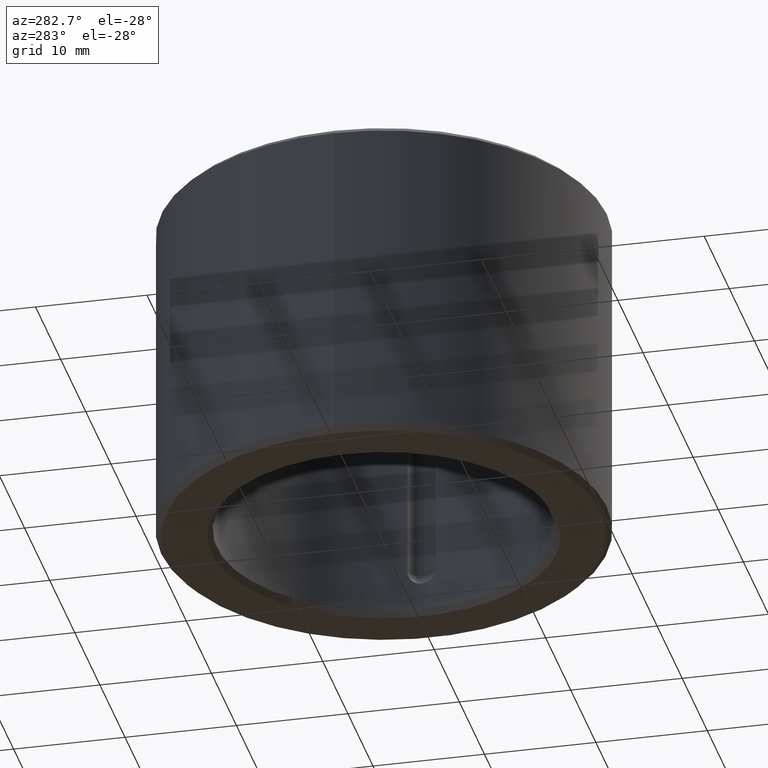
[diagram: clean part render]
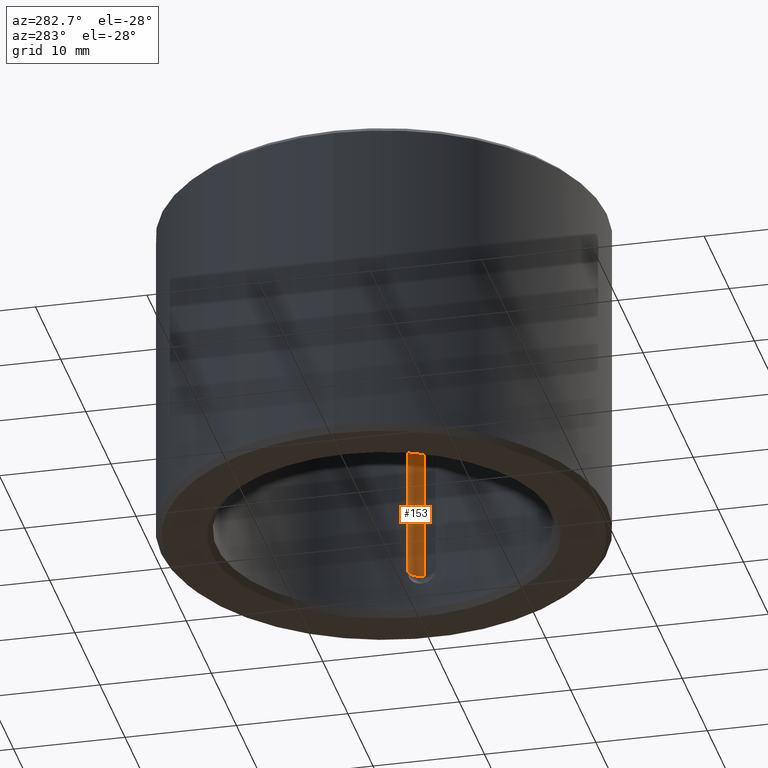
[diagram: same view with one face highlighted and labeled with its STEP entity id]
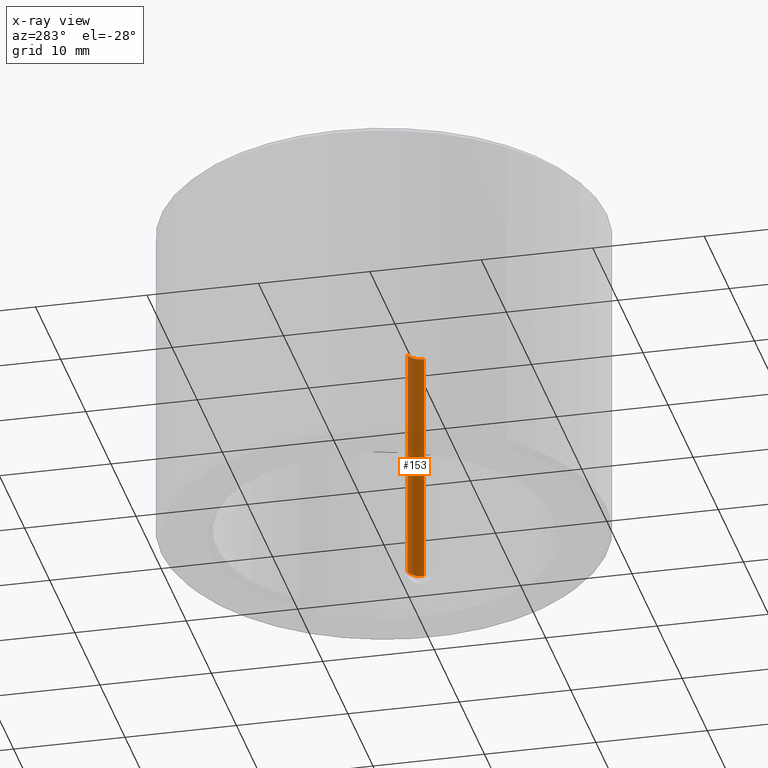
[diagram: x-ray of the same camera — body ghosted, the highlighted face saturated]
A machine part, auxiliary view. The second image highlights one B-rep face of the part: STEP entity #153.
The next image is the same camera in x-ray: the body ghosted, the highlighted face saturated — about 44% of this face is hidden behind the body in this view.
In plain terms, the highlighted cylindrical surface (edge-blend (fillet) strip) has radius 1.25 mm, axis along (-0, 0, -1).
Its self-contained STEP definition (entity closure, byte-faithful):
#153=ADVANCED_FACE('',(#168),#169,.F.);
#168=FACE_OUTER_BOUND('',#204,.T.);
#169=CYLINDRICAL_SURFACE('',#205,0.00125);
#204=EDGE_LOOP('',(#6431,#6432,#6433,#6434));
#205=AXIS2_PLACEMENT_3D('',#6435,#6436,#6437);
#6431=ORIENTED_EDGE('',*,*,#6504,.T.);
#6432=ORIENTED_EDGE('',*,*,#6505,.F.);
#6433=ORIENTED_EDGE('',*,*,#6506,.F.);
#6434=ORIENTED_EDGE('',*,*,#6507,.F.);
#6435=CARTESIAN_POINT('',(1.57533059132867E-005,-0.01475,8.06870141651985E-019));
#6436=DIRECTION('',(0.0,-6.12323399573677E-017,-1.0));
#6437=DIRECTION('',(0.0,1.0,-6.12323399573677E-017));
#6504=EDGE_CURVE('',#6524,#6525,#6526,.F.);
#6505=EDGE_CURVE('',#6527,#6525,#6528,.F.);
#6506=EDGE_CURVE('',#6529,#6527,#6530,.T.);
#6507=EDGE_CURVE('',#6524,#6529,#6531,.T.);
#6524=VERTEX_POINT('',#6560);
#6525=VERTEX_POINT('',#6561);
#6526=CIRCLE('',#6562,0.00125);
#6527=VERTEX_POINT('',#6563);
#6528=LINE('',#6564,#6565);
#6529=VERTEX_POINT('',#6566);
#6530=CIRCLE('',#6567,0.00125);
#6531=LINE('',#6568,#6569);
#6560=CARTESIAN_POINT('',(1.57533059132867E-005,-0.016,0.02575));
#6561=CARTESIAN_POINT('',(0.00125000000000003,-0.0149478259288767,0.02575));
#6562=AXIS2_PLACEMENT_3D('',#6822,#6823,#6824);
#6563=CARTESIAN_POINT('',(0.00125000000000003,-0.0149478259288767,0.00425));
#6564=CARTESIAN_POINT('',(0.00125000000000003,-0.0149478259288767,8.06870141651985E-019));
#6565=VECTOR('',#6825,1.0);
#6566=CARTESIAN_POINT('',(1.57533059132867E-005,-0.016,0.00425));
#6567=AXIS2_PLACEMENT_3D('',#6826,#6827,#6828);
#6568=CARTESIAN_POINT('',(1.57533059132867E-005,-0.016,0.02575));
#6569=VECTOR('',#6829,1.0);
#6822=CARTESIAN_POINT('',(1.57533059136915E-005,-0.01475,0.02575));
#6823=DIRECTION('',(0.0,0.0,-1.0));
#6824=DIRECTION('',(-1.0,0.0,0.0));
#6825=DIRECTION('',(0.0,-6.12323399573677E-017,-1.0));
#6826=CARTESIAN_POINT('',(1.57533059132867E-005,-0.01475,0.00425));
#6827=DIRECTION('',(0.0,0.0,1.0));
#6828=DIRECTION('',(1.0,0.0,0.0));
#6829=DIRECTION('',(0.0,0.0,-1.0));